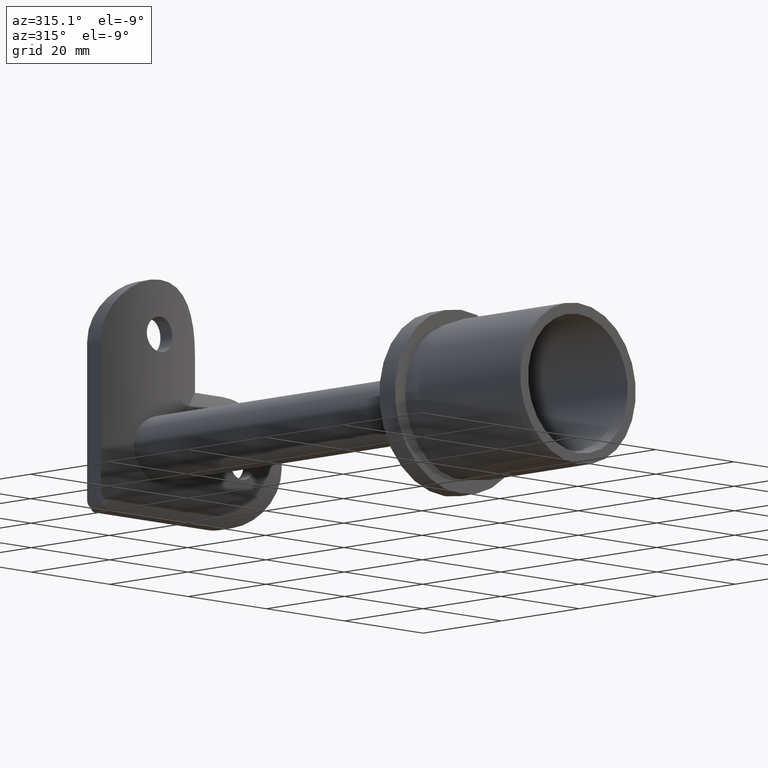
[diagram: clean part render]
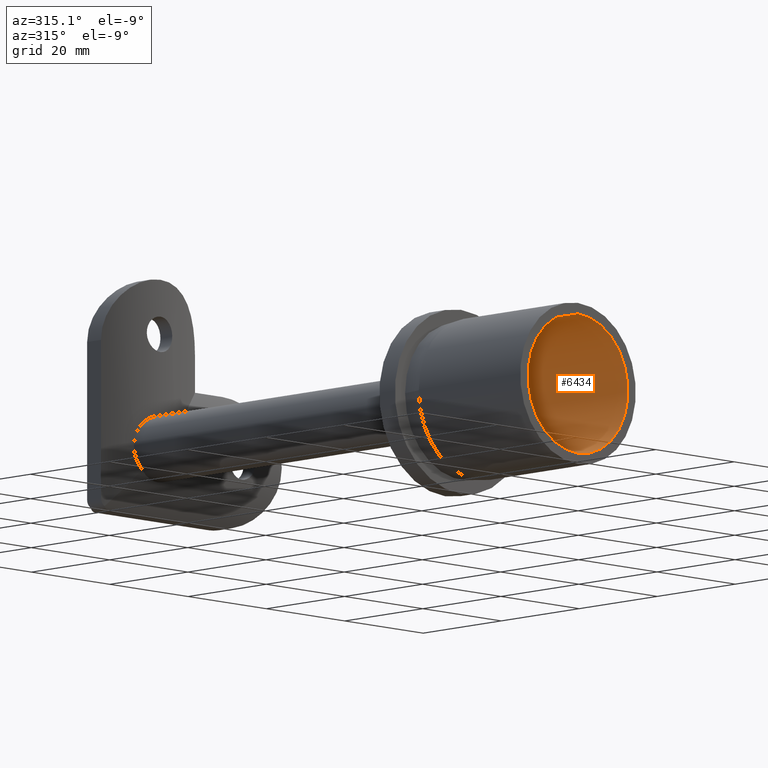
[diagram: same view with one face highlighted and labeled with its STEP entity id]
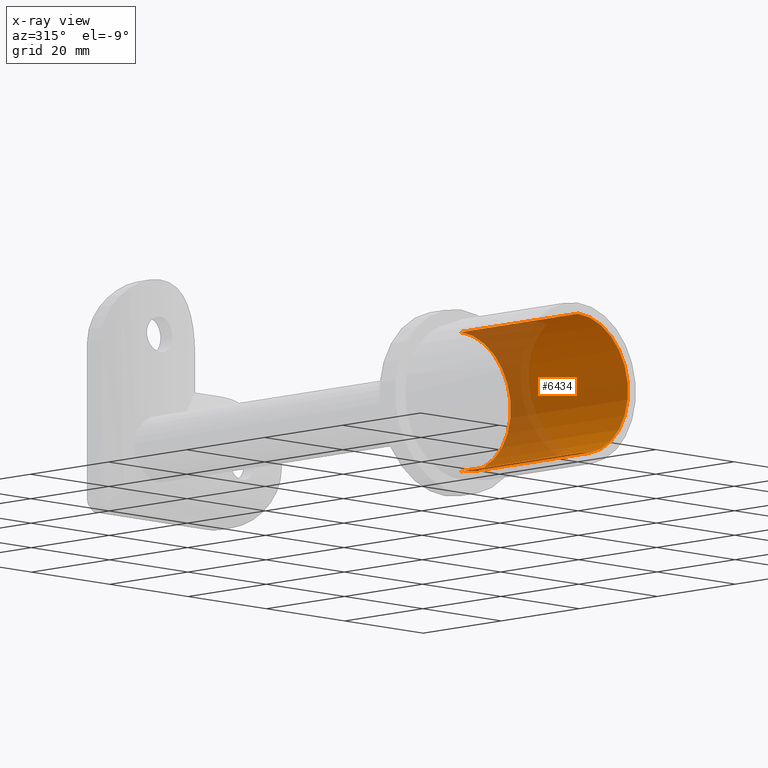
[diagram: x-ray of the same camera — body ghosted, the highlighted face saturated]
A machine part, auxiliary view. The second image highlights one B-rep face of the part: STEP entity #6434.
The next image is the same camera in x-ray: the body ghosted, the highlighted face saturated — about 32% of this face is hidden behind the body in this view.
In plain terms, the highlighted cylindrical surface (partial cylindrical patch) has radius 12.75 mm, axis along (-0, -1, -0).
Its self-contained STEP definition (entity closure, byte-faithful):
#329 = DIRECTION ( 'NONE',  ( 0.0000000000000000000, 0.0000000000000000000, -1.000000000000000000 ) ) ;
#590 = CARTESIAN_POINT ( 'NONE',  ( 1.561424668912875100E-015, 30.00000000000000000, 12.75000000000000000 ) ) ;
#870 = LINE ( 'NONE', #11070, #8534 ) ;
#1329 = LINE ( 'NONE', #6876, #1473 ) ;
#1454 = EDGE_CURVE ( 'NONE', #12263, #9433, #7901, .T. ) ;
#1473 = VECTOR ( 'NONE', #10752, 1000.000000000000000 ) ;
#1504 = CIRCLE ( 'NONE', #10744, 12.75000000000000000 ) ;
#2566 = ORIENTED_EDGE ( 'NONE', *, *, #2589, .F. ) ;
#2589 = EDGE_CURVE ( 'NONE', #9433, #8135, #870, .T. ) ;
#2692 = EDGE_LOOP ( 'NONE', ( #2566, #5866, #8816, #3122 ) ) ;
#2869 = EDGE_CURVE ( 'NONE', #12263, #4356, #1329, .T. ) ;
#3122 = ORIENTED_EDGE ( 'NONE', *, *, #8640, .F. ) ;
#3408 = CARTESIAN_POINT ( 'NONE',  ( 0.0000000000000000000, 0.0000000000000000000, -12.75000000000000000 ) ) ;
#4030 = CARTESIAN_POINT ( 'NONE',  ( 0.0000000000000000000, 30.00000000000000000, 0.0000000000000000000 ) ) ;
#4255 = AXIS2_PLACEMENT_3D ( 'NONE', #4030, #10605, #8796 ) ;
#4356 = VERTEX_POINT ( 'NONE', #3408 ) ;
#4552 = AXIS2_PLACEMENT_3D ( 'NONE', #9919, #8993, #329 ) ;
#4713 = FACE_OUTER_BOUND ( 'NONE', #2692, .T. ) ;
#4787 = DIRECTION ( 'NONE',  ( 0.0000000000000000000, 0.0000000000000000000, 1.000000000000000000 ) ) ;
#5866 = ORIENTED_EDGE ( 'NONE', *, *, #1454, .F. ) ;
#6434 = ADVANCED_FACE ( 'NONE', ( #4713 ), #11727, .F. ) ;
#6586 = CARTESIAN_POINT ( 'NONE',  ( 0.0000000000000000000, 0.0000000000000000000, 0.0000000000000000000 ) ) ;
#6876 = CARTESIAN_POINT ( 'NONE',  ( 0.0000000000000000000, 30.00000000000000000, -12.75000000000000000 ) ) ;
#7901 = CIRCLE ( 'NONE', #4552, 12.75000000000000000 ) ;
#8135 = VERTEX_POINT ( 'NONE', #12436 ) ;
#8187 = DIRECTION ( 'NONE',  ( -0.0000000000000000000, -1.000000000000000000, -0.0000000000000000000 ) ) ;
#8534 = VECTOR ( 'NONE', #8187, 1000.000000000000000 ) ;
#8640 = EDGE_CURVE ( 'NONE', #8135, #4356, #1504, .T. ) ;
#8796 = DIRECTION ( 'NONE',  ( 0.0000000000000000000, 0.0000000000000000000, -1.000000000000000000 ) ) ;
#8816 = ORIENTED_EDGE ( 'NONE', *, *, #2869, .T. ) ;
#8993 = DIRECTION ( 'NONE',  ( -0.0000000000000000000, -1.000000000000000000, -0.0000000000000000000 ) ) ;
#9433 = VERTEX_POINT ( 'NONE', #590 ) ;
#9644 = DIRECTION ( 'NONE',  ( 0.0000000000000000000, 1.000000000000000000, 0.0000000000000000000 ) ) ;
#9919 = CARTESIAN_POINT ( 'NONE',  ( 0.0000000000000000000, 30.00000000000000000, 0.0000000000000000000 ) ) ;
#10605 = DIRECTION ( 'NONE',  ( -0.0000000000000000000, -1.000000000000000000, -0.0000000000000000000 ) ) ;
#10744 = AXIS2_PLACEMENT_3D ( 'NONE', #6586, #9644, #4787 ) ;
#10752 = DIRECTION ( 'NONE',  ( -0.0000000000000000000, -1.000000000000000000, -0.0000000000000000000 ) ) ;
#11070 = CARTESIAN_POINT ( 'NONE',  ( 1.561424668912875100E-015, 30.00000000000000000, 12.75000000000000000 ) ) ;
#11136 = CARTESIAN_POINT ( 'NONE',  ( 0.0000000000000000000, 30.00000000000000000, -12.75000000000000000 ) ) ;
#11727 = CYLINDRICAL_SURFACE ( 'NONE', #4255, 12.75000000000000000 ) ;
#12263 = VERTEX_POINT ( 'NONE', #11136 ) ;
#12436 = CARTESIAN_POINT ( 'NONE',  ( 1.561424668912875100E-015, 0.0000000000000000000, 12.75000000000000000 ) ) ;